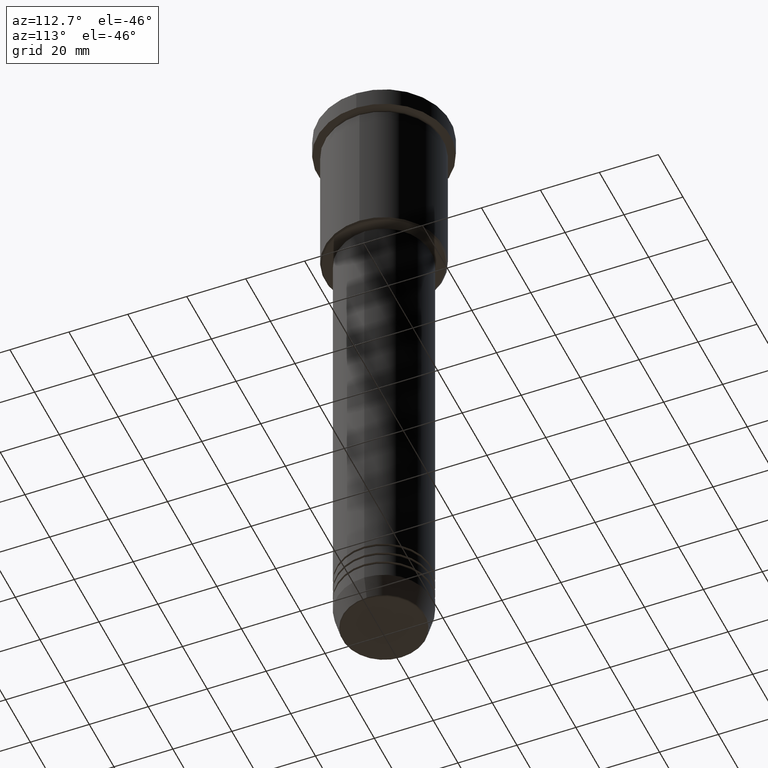
[diagram: clean part render]
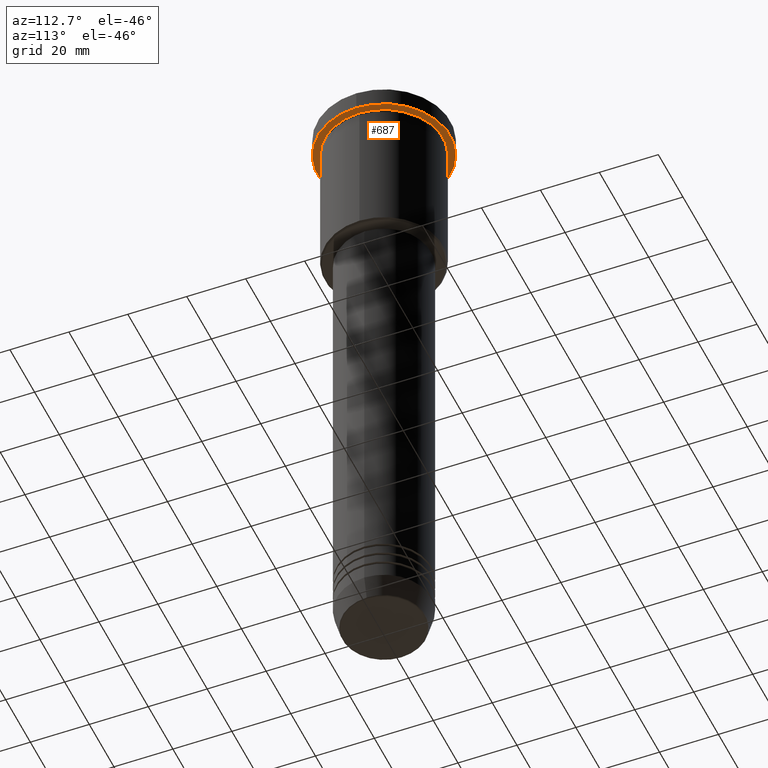
[diagram: same view with one face highlighted and labeled with its STEP entity id]
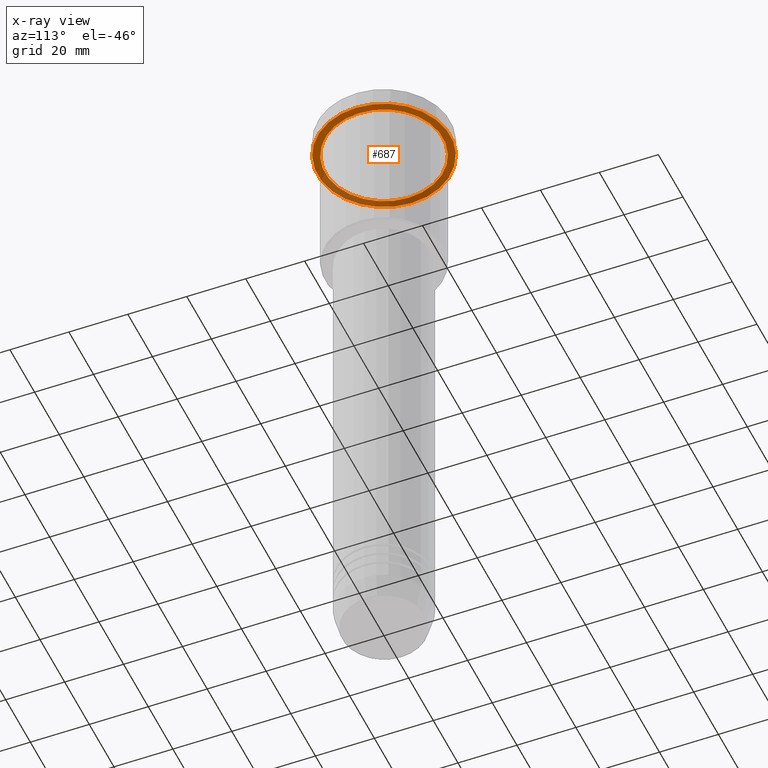
[diagram: x-ray of the same camera — body ghosted, the highlighted face saturated]
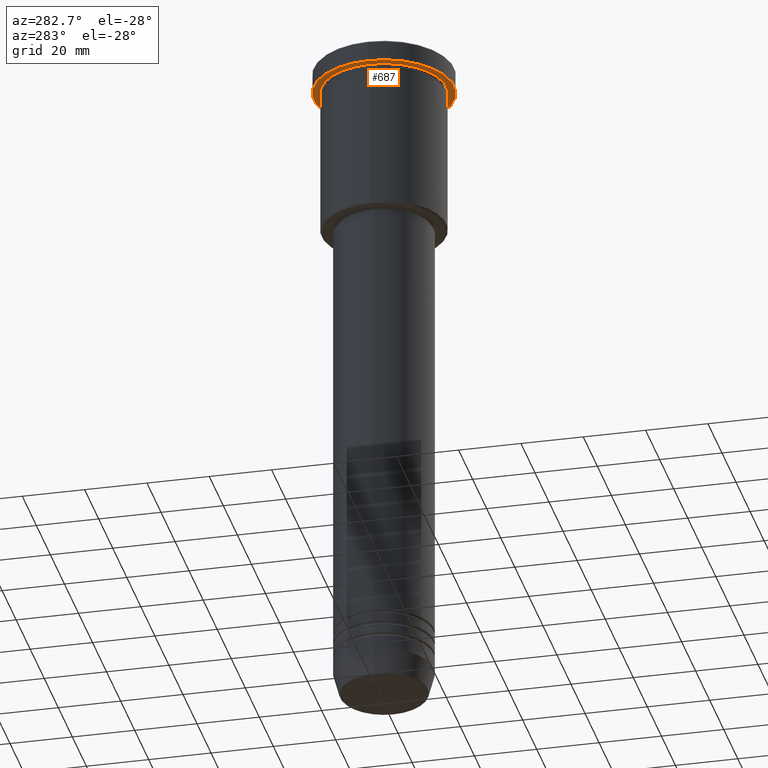
[diagram: same view with one face highlighted and labeled with its STEP entity id]
A machine part, auxiliary view. The second image highlights one B-rep face of the part: STEP entity #687.
The next image is the same camera in x-ray: the body ghosted, the highlighted face saturated — about 36% of this face is hidden behind the body in this view.
A second angle (auxiliary view) of the same face is appended — the face is thin or edge-on in the first view.
In plain terms, the highlighted planar face has unit normal (0, 0, -1).
Its self-contained STEP definition (entity closure, byte-faithful):
#9 = FACE_BOUND ( 'NONE', #17, .T. ) ;
#17 = EDGE_LOOP ( 'NONE', ( #286, #1126 ) ) ;
#51 = CARTESIAN_POINT ( 'NONE',  ( -22.50000000000000000, 2.755455298081544778E-15, -6.999999999999995559 ) ) ;
#86 = DIRECTION ( 'NONE',  ( -1.000000000000000000, 0.000000000000000000, 0.000000000000000000 ) ) ;
#119 = CIRCLE ( 'NONE', #858, 22.50000000000000000 ) ;
#133 = DIRECTION ( 'NONE',  ( 1.000000000000000000, 0.000000000000000000, 0.000000000000000000 ) ) ;
#176 = CARTESIAN_POINT ( 'NONE',  ( 0.000000000000000000, 0.000000000000000000, -6.999999999999995559 ) ) ;
#189 = FACE_OUTER_BOUND ( 'NONE', #1127, .T. ) ;
#197 = EDGE_CURVE ( 'NONE', #856, #302, #119, .T. ) ;
#285 = CARTESIAN_POINT ( 'NONE',  ( 22.50000000000000000, 0.000000000000000000, -6.999999999999995559 ) ) ;
#286 = ORIENTED_EDGE ( 'NONE', *, *, #593, .T. ) ;
#298 = CIRCLE ( 'NONE', #934, 20.00000000000000000 ) ;
#302 = VERTEX_POINT ( 'NONE', #285 ) ;
#307 = ORIENTED_EDGE ( 'NONE', *, *, #197, .F. ) ;
#347 = DIRECTION ( 'NONE',  ( 0.000000000000000000, 0.000000000000000000, -1.000000000000000000 ) ) ;
#373 = PLANE ( 'NONE',  #992 ) ;
#396 = CIRCLE ( 'NONE', #1139, 20.00000000000000000 ) ;
#414 = EDGE_CURVE ( 'NONE', #302, #856, #1026, .T. ) ;
#442 = DIRECTION ( 'NONE',  ( -0.000000000000000000, -0.000000000000000000, 1.000000000000000000 ) ) ;
#532 = DIRECTION ( 'NONE',  ( -0.000000000000000000, -0.000000000000000000, 1.000000000000000000 ) ) ;
#574 = ORIENTED_EDGE ( 'NONE', *, *, #414, .F. ) ;
#593 = EDGE_CURVE ( 'NONE', #688, #1020, #396, .T. ) ;
#620 = CARTESIAN_POINT ( 'NONE',  ( 20.00000000000000000, 2.449293598294706513E-15, -6.999999999999995559 ) ) ;
#687 = ADVANCED_FACE ( 'NONE', ( #9, #189 ), #373, .T. ) ;
#688 = VERTEX_POINT ( 'NONE', #754 ) ;
#702 = DIRECTION ( 'NONE',  ( -0.000000000000000000, -0.000000000000000000, 1.000000000000000000 ) ) ;
#715 = DIRECTION ( 'NONE',  ( 1.000000000000000000, 0.000000000000000000, 0.000000000000000000 ) ) ;
#750 = CARTESIAN_POINT ( 'NONE',  ( 0.000000000000000000, 22.50000000000000000, -6.999999999999995559 ) ) ;
#754 = CARTESIAN_POINT ( 'NONE',  ( -20.00000000000000000, 0.000000000000000000, -6.999999999999995559 ) ) ;
#816 = CARTESIAN_POINT ( 'NONE',  ( 0.000000000000000000, 0.000000000000000000, -6.999999999999995559 ) ) ;
#856 = VERTEX_POINT ( 'NONE', #51 ) ;
#858 = AXIS2_PLACEMENT_3D ( 'NONE', #176, #532, #715 ) ;
#866 = CARTESIAN_POINT ( 'NONE',  ( 0.000000000000000000, 0.000000000000000000, -6.999999999999995559 ) ) ;
#887 = CARTESIAN_POINT ( 'NONE',  ( 0.000000000000000000, 0.000000000000000000, -6.999999999999995559 ) ) ;
#934 = AXIS2_PLACEMENT_3D ( 'NONE', #887, #702, #1059 ) ;
#942 = EDGE_CURVE ( 'NONE', #1020, #688, #298, .T. ) ;
#992 = AXIS2_PLACEMENT_3D ( 'NONE', #750, #347, #1128 ) ;
#1020 = VERTEX_POINT ( 'NONE', #620 ) ;
#1026 = CIRCLE ( 'NONE', #1061, 22.50000000000000000 ) ;
#1059 = DIRECTION ( 'NONE',  ( -1.000000000000000000, 0.000000000000000000, 0.000000000000000000 ) ) ;
#1061 = AXIS2_PLACEMENT_3D ( 'NONE', #866, #1099, #133 ) ;
#1099 = DIRECTION ( 'NONE',  ( -0.000000000000000000, -0.000000000000000000, 1.000000000000000000 ) ) ;
#1126 = ORIENTED_EDGE ( 'NONE', *, *, #942, .T. ) ;
#1127 = EDGE_LOOP ( 'NONE', ( #574, #307 ) ) ;
#1128 = DIRECTION ( 'NONE',  ( -1.000000000000000000, 0.000000000000000000, -0.000000000000000000 ) ) ;
#1139 = AXIS2_PLACEMENT_3D ( 'NONE', #816, #442, #86 ) ;